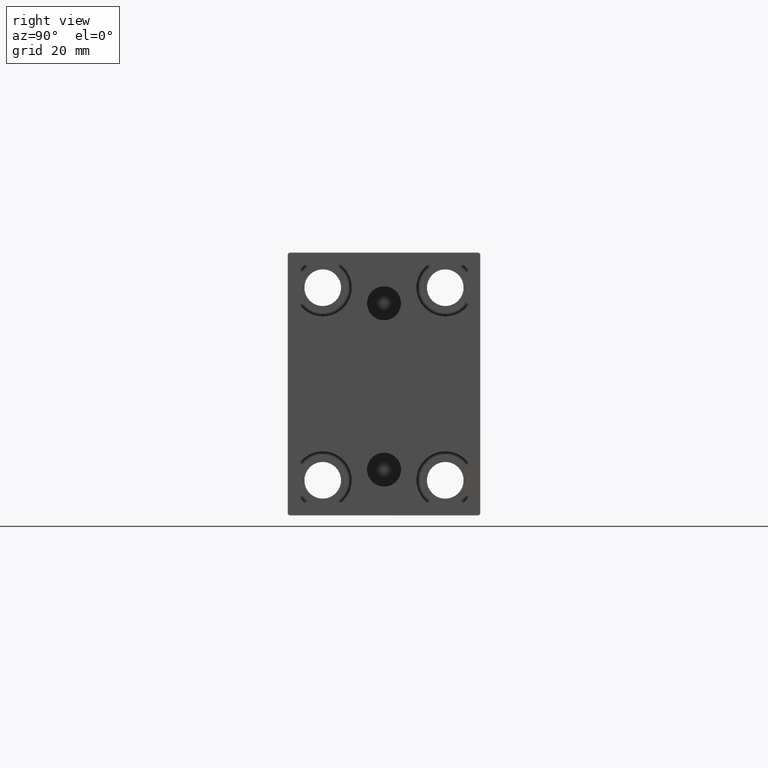
[diagram: clean part render]
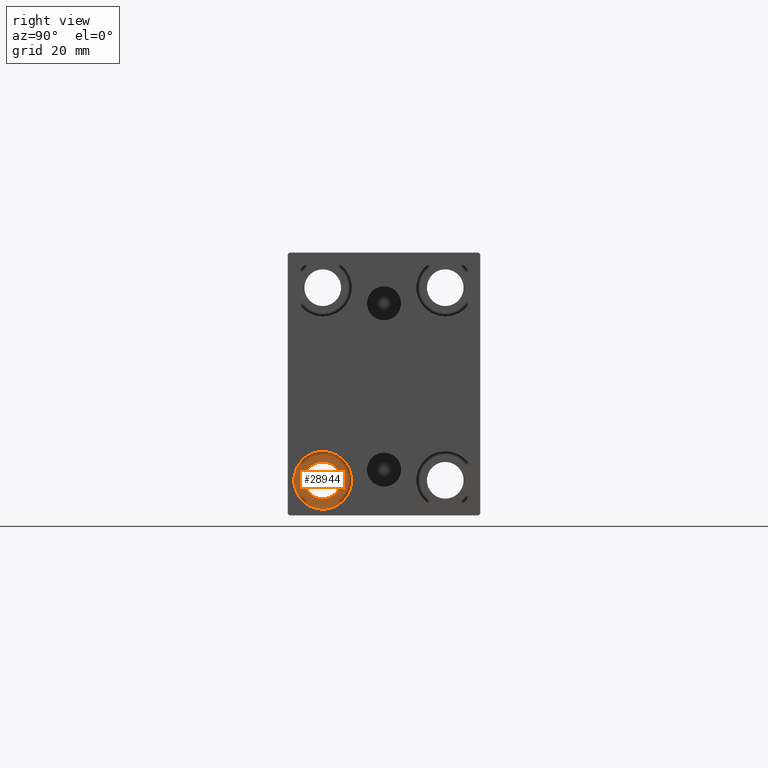
[diagram: same view with one face highlighted and labeled with its STEP entity id]
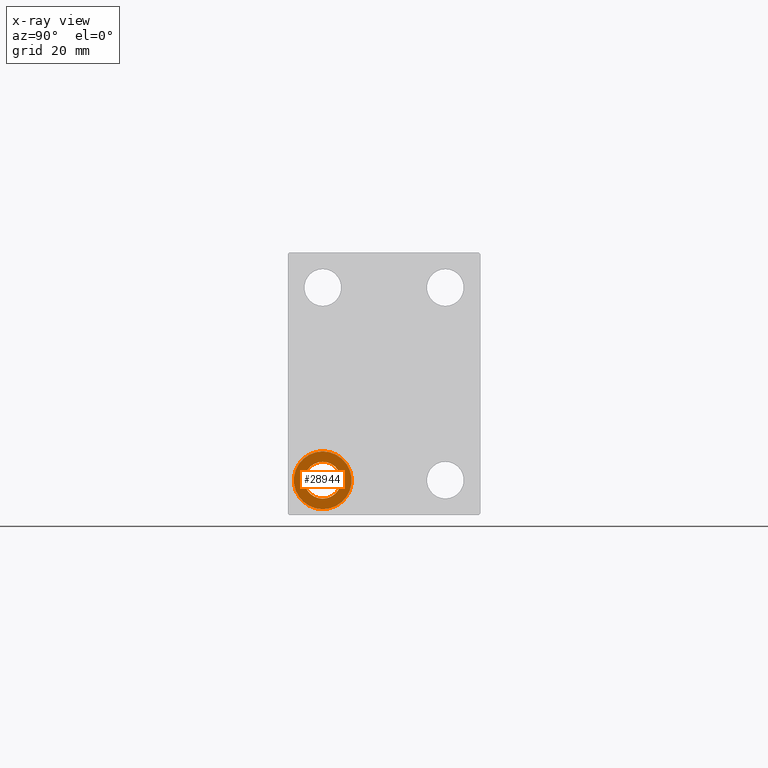
[diagram: x-ray of the same camera — body ghosted, the highlighted face saturated]
A machine part, right view. The second image highlights one B-rep face of the part: STEP entity #28944.
The next image is the same camera in x-ray: the body ghosted, the highlighted face saturated — about 0% of this face is hidden behind the body in this view.
In plain terms, the highlighted planar face has unit normal (1, 0, 0).
Its self-contained STEP definition (entity closure, byte-faithful):
#3604 = VERTEX_POINT ( 'NONE', #7520 ) ;
#5092 = DIRECTION ( 'NONE',  ( 0.000000000000000000, 0.000000000000000000, -1.000000000000000000 ) ) ;
#7520 = CARTESIAN_POINT ( 'NONE',  ( 163.9999999999999716, -17.50000000000000355, -22.25000000000000355 ) ) ;
#7721 = CARTESIAN_POINT ( 'NONE',  ( 163.9999999999999716, 0.000000000000000000, 0.000000000000000000 ) ) ;
#10759 = CIRCLE ( 'NONE', #17764, 8.250000000000000000 ) ;
#10914 = EDGE_CURVE ( 'NONE', #30279, #12632, #10759, .T. ) ;
#11026 = CARTESIAN_POINT ( 'NONE',  ( 163.9999999999999716, -17.50000000000000355, -27.50000000000000355 ) ) ;
#12632 = VERTEX_POINT ( 'NONE', #19799 ) ;
#14095 = ORIENTED_EDGE ( 'NONE', *, *, #31556, .T. ) ;
#14130 = EDGE_CURVE ( 'NONE', #12632, #30279, #36822, .T. ) ;
#15028 = AXIS2_PLACEMENT_3D ( 'NONE', #34169, #17194, #41414 ) ;
#17194 = DIRECTION ( 'NONE',  ( -1.000000000000000000, -0.000000000000000000, -0.000000000000000000 ) ) ;
#17282 = AXIS2_PLACEMENT_3D ( 'NONE', #7721, #26401, #19353 ) ;
#17655 = VERTEX_POINT ( 'NONE', #18746 ) ;
#17728 = EDGE_LOOP ( 'NONE', ( #31974, #14095 ) ) ;
#17764 = AXIS2_PLACEMENT_3D ( 'NONE', #11026, #38109, #41207 ) ;
#18746 = CARTESIAN_POINT ( 'NONE',  ( 163.9999999999999716, -17.50000000000000355, -32.75000000000000000 ) ) ;
#19353 = DIRECTION ( 'NONE',  ( 0.000000000000000000, 0.000000000000000000, 1.000000000000000000 ) ) ;
#19799 = CARTESIAN_POINT ( 'NONE',  ( 163.9999999999999716, -17.50000000000000355, -19.25000000000000355 ) ) ;
#21629 = DIRECTION ( 'NONE',  ( -1.000000000000000000, -0.000000000000000000, -0.000000000000000000 ) ) ;
#24463 = FACE_BOUND ( 'NONE', #17728, .T. ) ;
#24828 = ORIENTED_EDGE ( 'NONE', *, *, #10914, .F. ) ;
#26401 = DIRECTION ( 'NONE',  ( 1.000000000000000000, 0.000000000000000000, -0.000000000000000000 ) ) ;
#27882 = AXIS2_PLACEMENT_3D ( 'NONE', #38163, #21629, #5092 ) ;
#28944 = ADVANCED_FACE ( 'NONE', ( #42275, #24463 ), #37897, .T. ) ;
#30279 = VERTEX_POINT ( 'NONE', #35021 ) ;
#30320 = DIRECTION ( 'NONE',  ( -1.000000000000000000, -0.000000000000000000, -0.000000000000000000 ) ) ;
#30690 = CIRCLE ( 'NONE', #27882, 5.249999999999997335 ) ;
#30811 = EDGE_CURVE ( 'NONE', #3604, #17655, #30690, .T. ) ;
#31556 = EDGE_CURVE ( 'NONE', #17655, #3604, #40578, .T. ) ;
#31974 = ORIENTED_EDGE ( 'NONE', *, *, #30811, .T. ) ;
#33625 = DIRECTION ( 'NONE',  ( 0.000000000000000000, 0.000000000000000000, -1.000000000000000000 ) ) ;
#34169 = CARTESIAN_POINT ( 'NONE',  ( 163.9999999999999716, -17.50000000000000355, -27.50000000000000355 ) ) ;
#35021 = CARTESIAN_POINT ( 'NONE',  ( 163.9999999999999716, -17.50000000000000355, -35.75000000000000711 ) ) ;
#35541 = EDGE_LOOP ( 'NONE', ( #24828, #38633 ) ) ;
#36361 = AXIS2_PLACEMENT_3D ( 'NONE', #40006, #30320, #33625 ) ;
#36822 = CIRCLE ( 'NONE', #15028, 8.250000000000000000 ) ;
#37897 = PLANE ( 'NONE',  #17282 ) ;
#38109 = DIRECTION ( 'NONE',  ( -1.000000000000000000, -0.000000000000000000, -0.000000000000000000 ) ) ;
#38163 = CARTESIAN_POINT ( 'NONE',  ( 163.9999999999999716, -17.50000000000000355, -27.50000000000000355 ) ) ;
#38633 = ORIENTED_EDGE ( 'NONE', *, *, #14130, .F. ) ;
#40006 = CARTESIAN_POINT ( 'NONE',  ( 163.9999999999999716, -17.50000000000000355, -27.50000000000000355 ) ) ;
#40578 = CIRCLE ( 'NONE', #36361, 5.249999999999997335 ) ;
#41207 = DIRECTION ( 'NONE',  ( 0.000000000000000000, 0.000000000000000000, 1.000000000000000000 ) ) ;
#41414 = DIRECTION ( 'NONE',  ( 0.000000000000000000, 0.000000000000000000, 1.000000000000000000 ) ) ;
#42275 = FACE_OUTER_BOUND ( 'NONE', #35541, .T. ) ;